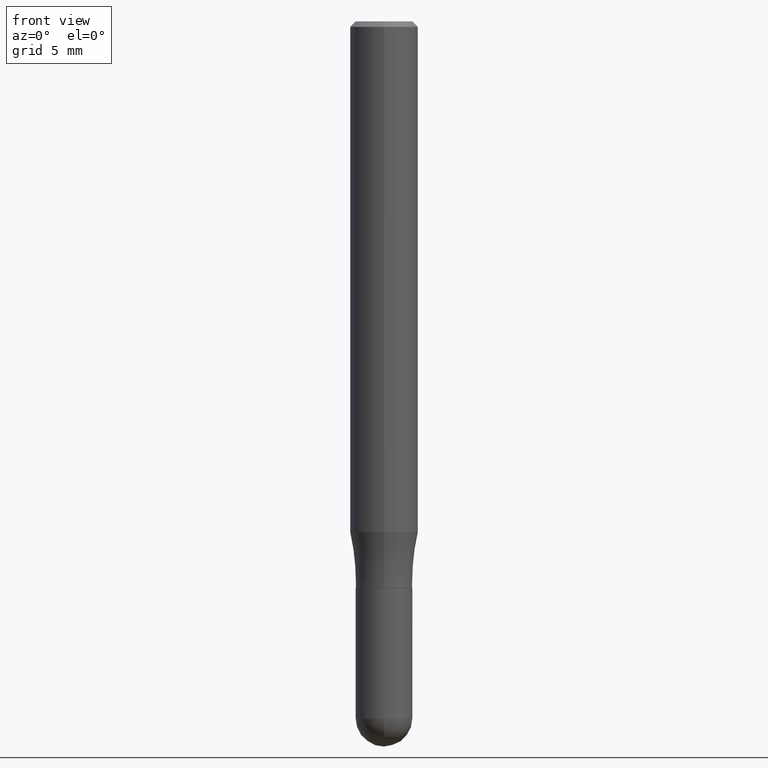
[diagram: clean part render]
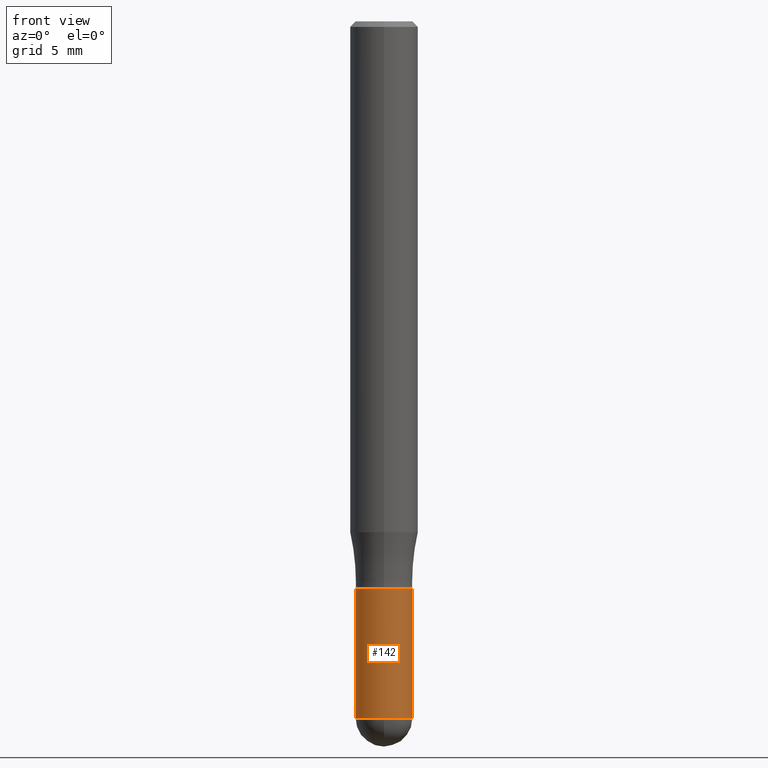
[diagram: same view with one face highlighted and labeled with its STEP entity id]
A machine part, front view. The second image highlights one B-rep face of the part: STEP entity #142.
In plain terms, the highlighted cylindrical surface (edge-blend (fillet) strip) has radius 1.9837 mm, axis along (-0, 0, 1).
Its self-contained STEP definition (entity closure, byte-faithful):
#17 = LINE ( 'NONE', #457, #486 ) ;
#29 = ORIENTED_EDGE ( 'NONE', *, *, #407, .T. ) ;
#33 = EDGE_LOOP ( 'NONE', ( #354, #427, #29, #337, #271 ) ) ;
#41 = CIRCLE ( 'NONE', #327, 0.07809999999999987785 ) ;
#48 = AXIS2_PLACEMENT_3D ( 'NONE', #343, #79, #505 ) ;
#61 = CIRCLE ( 'NONE', #220, 0.07809999999999991949 ) ;
#78 = VERTEX_POINT ( 'NONE', #110 ) ;
#79 = DIRECTION ( 'NONE',  ( -2.445468806185136597E-29, 3.491481338843145583E-15, 1.000000000000000000 ) ) ;
#88 = CARTESIAN_POINT ( 'NONE',  ( 3.822267744067367613E-29, -5.457185332611835515E-15, -1.562999999999999723 ) ) ;
#89 = CYLINDRICAL_SURFACE ( 'NONE', #48, 0.07809999999999989173 ) ;
#93 = DIRECTION ( 'NONE',  ( 1.000000000000000000, -6.982962677686261189E-15, 0.000000000000000000 ) ) ;
#109 = CARTESIAN_POINT ( 'NONE',  ( -0.07809999999999991949, -5.528797782238600914E-15, -1.921900000000000164 ) ) ;
#110 = CARTESIAN_POINT ( 'NONE',  ( -0.07809999999999987785, -5.528797782238600914E-15, -1.562999999999999723 ) ) ;
#118 = LINE ( 'NONE', #265, #219 ) ;
#132 = CARTESIAN_POINT ( 'NONE',  ( 4.699946498607214373E-29, -6.710277985122641264E-15, -1.921900000000000164 ) ) ;
#142 = ADVANCED_FACE ( 'NONE', ( #446 ), #89, .T. ) ;
#164 = EDGE_CURVE ( 'NONE', #510, #199, #118, .T. ) ;
#180 = AXIS2_PLACEMENT_3D ( 'NONE', #132, #362, #93 ) ;
#198 = VERTEX_POINT ( 'NONE', #453 ) ;
#199 = VERTEX_POINT ( 'NONE', #406 ) ;
#219 = VECTOR ( 'NONE', #473, 39.37007874015748143 ) ;
#220 = AXIS2_PLACEMENT_3D ( 'NONE', #330, #499, #258 ) ;
#237 = EDGE_CURVE ( 'NONE', #476, #198, #409, .T. ) ;
#238 = DIRECTION ( 'NONE',  ( -2.445468806185136597E-29, 3.491481338843145583E-15, 1.000000000000000000 ) ) ;
#258 = DIRECTION ( 'NONE',  ( 1.000000000000000000, -6.982962677686261189E-15, 0.000000000000000000 ) ) ;
#265 = CARTESIAN_POINT ( 'NONE',  ( 0.07809999999999989173, -5.453693851272967462E-16, 3.808294061896620798E-30 ) ) ;
#271 = ORIENTED_EDGE ( 'NONE', *, *, #284, .F. ) ;
#284 = EDGE_CURVE ( 'NONE', #78, #199, #41, .T. ) ;
#327 = AXIS2_PLACEMENT_3D ( 'NONE', #88, #238, #441 ) ;
#330 = CARTESIAN_POINT ( 'NONE',  ( 4.699946498607214373E-29, -6.710277985122641264E-15, -1.921900000000000164 ) ) ;
#333 = CARTESIAN_POINT ( 'NONE',  ( 0.07809999999999991949, -6.629101043994534642E-15, -1.921900000000000164 ) ) ;
#337 = ORIENTED_EDGE ( 'NONE', *, *, #164, .T. ) ;
#343 = CARTESIAN_POINT ( 'NONE',  ( 0.000000000000000000, 0.000000000000000000, 0.000000000000000000 ) ) ;
#354 = ORIENTED_EDGE ( 'NONE', *, *, #448, .F. ) ;
#362 = DIRECTION ( 'NONE',  ( -2.445468806185136597E-29, 3.491481338843145583E-15, 1.000000000000000000 ) ) ;
#406 = CARTESIAN_POINT ( 'NONE',  ( 0.07809999999999987785, -6.002554717739132163E-15, -1.562999999999999723 ) ) ;
#407 = EDGE_CURVE ( 'NONE', #198, #510, #61, .T. ) ;
#409 = CIRCLE ( 'NONE', #180, 0.07809999999999991949 ) ;
#427 = ORIENTED_EDGE ( 'NONE', *, *, #237, .T. ) ;
#441 = DIRECTION ( 'NONE',  ( 1.000000000000000000, -6.982962677686265133E-15, 0.000000000000000000 ) ) ;
#446 = FACE_OUTER_BOUND ( 'NONE', #33, .T. ) ;
#448 = EDGE_CURVE ( 'NONE', #476, #78, #17, .T. ) ;
#453 = CARTESIAN_POINT ( 'NONE',  ( -5.549338766285906373E-16, -0.07810000000000665021, -1.921899999999999720 ) ) ;
#457 = CARTESIAN_POINT ( 'NONE',  ( -0.07809999999999989173, 5.549338766286374759E-16, -3.841688305489076370E-30 ) ) ;
#463 = DIRECTION ( 'NONE',  ( -2.445468806185136877E-29, 3.491481338843145188E-15, 1.000000000000000000 ) ) ;
#473 = DIRECTION ( 'NONE',  ( -2.445468806185136877E-29, 3.491481338843145188E-15, 1.000000000000000000 ) ) ;
#476 = VERTEX_POINT ( 'NONE', #109 ) ;
#486 = VECTOR ( 'NONE', #463, 39.37007874015748143 ) ;
#499 = DIRECTION ( 'NONE',  ( -2.445468806185136597E-29, 3.491481338843145583E-15, 1.000000000000000000 ) ) ;
#505 = DIRECTION ( 'NONE',  ( 1.000000000000000000, -6.982962677686267499E-15, 4.876176775795936353E-29 ) ) ;
#510 = VERTEX_POINT ( 'NONE', #333 ) ;